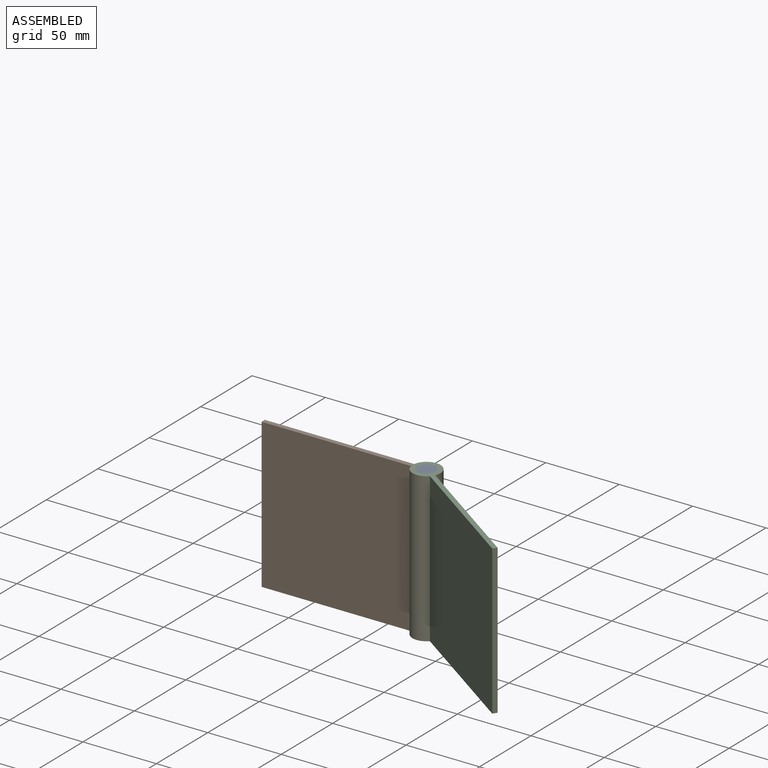
[diagram: assembled view]
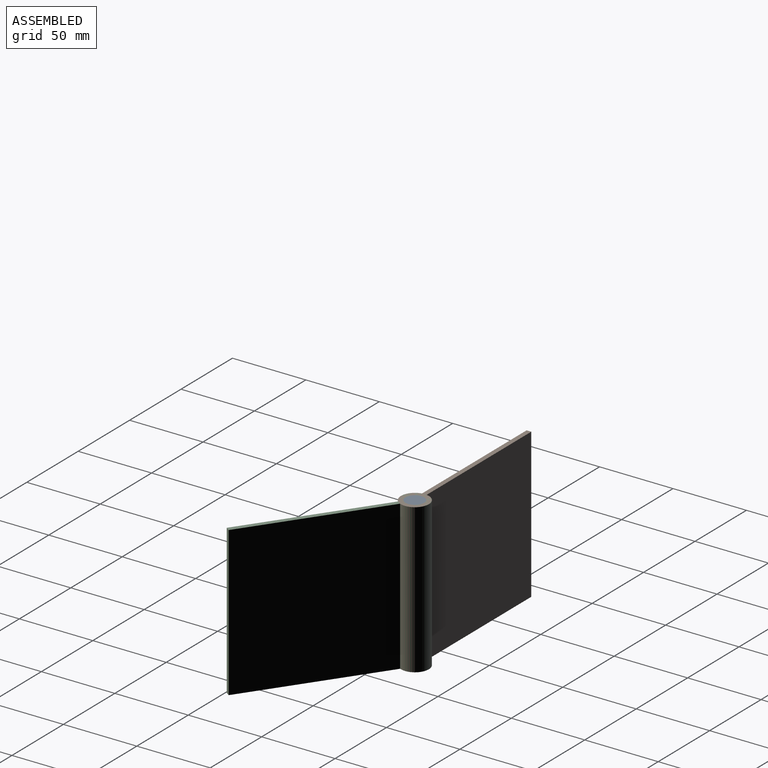
[diagram: assembled view, second angle]
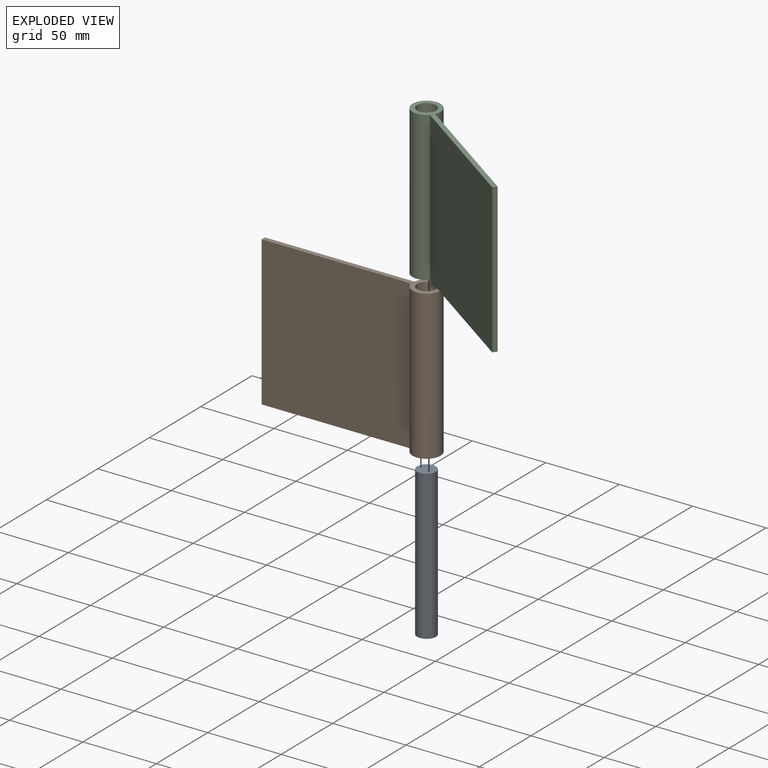
[diagram: exploded view]
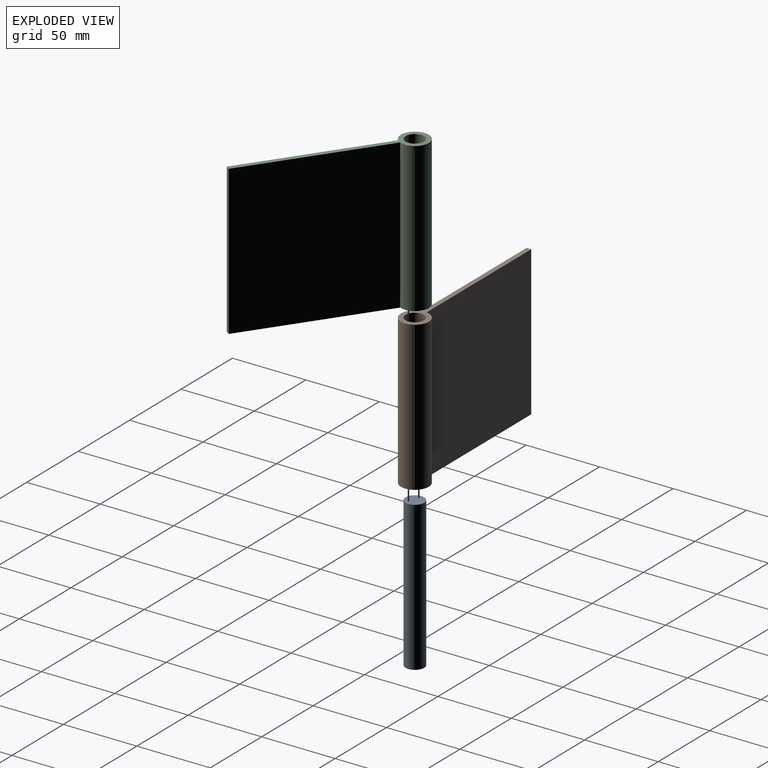
[diagram: exploded view, second angle]
ASSEMBLY  parts=3 mates=4
PART A: 3 faces, bbox 12.7x12.7x101.6 mm
  f0: cylinder r=6.35mm len=101.6mm, axis (0,0,-1), area 4053.7mm2, adj f1,f2
  f1: plane 12.7x12.7mm, normal (0,0,1), area 126.7mm2, adj f0
  f2: plane 12.7x12.7mm, normal (0,0,-1), area 126.7mm2, adj f0
PART B: 7 faces, bbox 120.7x19.1x101.6 mm
  f0: plane 101.76x101.6mm, normal (0,1,0), area 10338.4mm2, adj f1,f4,f5,f6
  f1: cylinder r=9.53mm len=101.6mm, axis (0,0,-1), area 5756.4mm2, adj f0,f2,f5,f6
  f2: plane 101.71x101.6mm, normal (0,-1,0), area 10334mm2, adj f1,f4,f5,f6
  f3: cylinder r=6.35mm len=101.6mm, axis (0,0,-1), area 4053.7mm2, adj f5,f6
  f4: plane 101.6x3.18mm, normal (1,0,0), area 322.6mm2, adj f0,f2,f5,f6
  f5: plane 120.65x19.05mm, normal (0,0,1), area 481.1mm2, adj f0,f1,f2,f3,f4
  f6: plane 120.65x19.05mm, normal (0,0,-1), area 481.1mm2, adj f0,f1,f2,f3,f4
PART C: same geometry as B
PLACE A rot(axis=(0,0,1),0deg) t=(-220.2,120.19,-181)mm
PLACE B rot(axis=(0,0,1),180deg) t=(-220.2,120.19,-181)mm
PLACE C rot(axis=(0,0,-1),35deg) t=(-220.2,120.19,-181)mm
MATE cylindrical A.f0 <-> C.f3  axis (0,0,-1) through (-220.2,120.19,-130.2)mm
MATE planar C.f5 <-> A.f0  axis (0,0,1) through (-187.02,97.06,-79.4)mm
MATE cylindrical B.f3 <-> C.f3  axis (0,0,-1) through (-220.2,120.19,-79.4)mm
MATE planar A.f0 <-> B.f5  axis (0,0,1) through (-220.2,120.19,-79.4)mm
